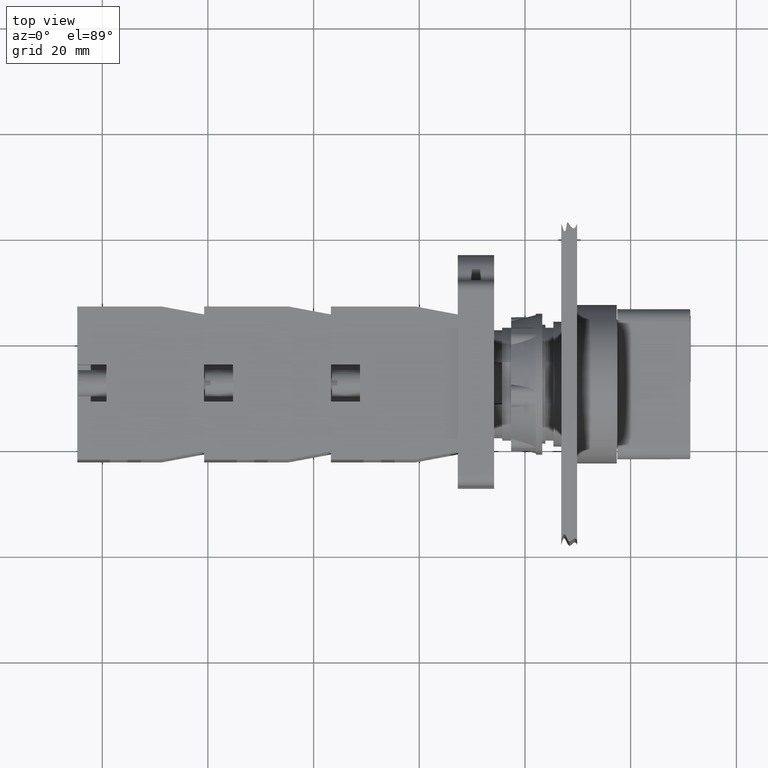
[diagram: clean part render]
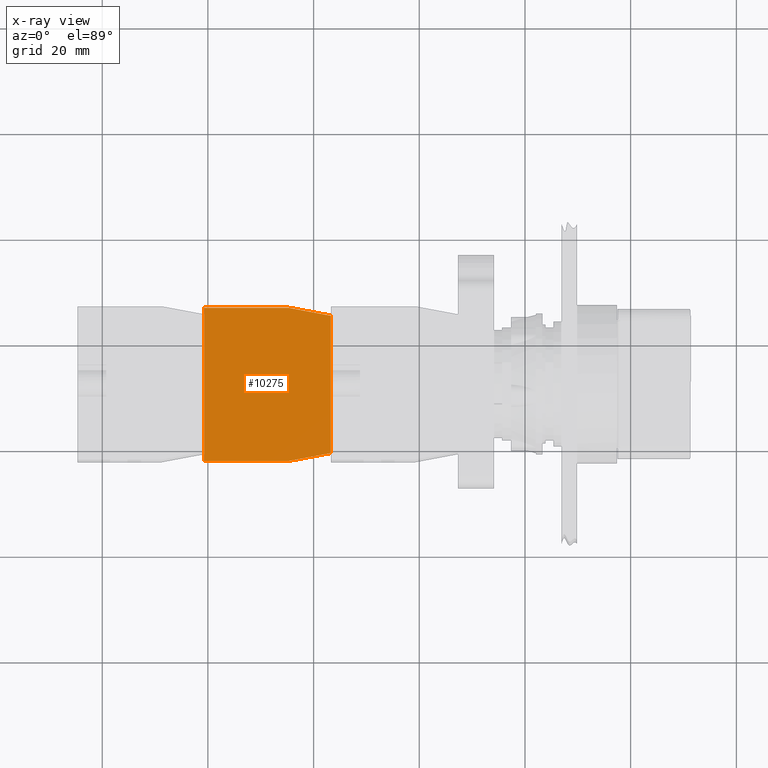
[diagram: x-ray — body ghosted, one internal face saturated and labeled with its STEP entity id]
A machine part, top view, then the same camera in x-ray: the body is ghosted and one INTERNAL B-rep face — a face not visible from any outside direction — is saturated and labeled: STEP entity #10275.
In plain terms, the highlighted planar face has unit normal (-0, 0, -1).
Its self-contained STEP definition (entity closure, byte-faithful):
#8580=CARTESIAN_POINT('',(-44.936741828918471,23.797073323279623,0.0));
#8581=VERTEX_POINT('',#8580);
#8588=CARTESIAN_POINT('',(-44.936741828918457,7.797073323279626,0.0));
#8589=VERTEX_POINT('',#8588);
#8590=CARTESIAN_POINT('',(-44.936741828918457,7.797073323279626,0.0));
#8591=DIRECTION('',(0.0,1.0,0.0));
#8592=VECTOR('',#8591,15.999999999999996);
#8593=LINE('',#8590,#8592);
#8594=EDGE_CURVE('',#8589,#8581,#8593,.T.);
#8771=CARTESIAN_POINT('',(-43.436741828918457,-0.202926676720380,0.0));
#8772=VERTEX_POINT('',#8771);
#8779=CARTESIAN_POINT('',(-17.436741828918457,-0.202926676720377,0.0));
#8780=VERTEX_POINT('',#8779);
#8781=CARTESIAN_POINT('',(-17.436741828918457,-0.202926676720377,0.0));
#8782=DIRECTION('',(-1.0,0.0,0.0));
#8783=VECTOR('',#8782,26.0);
#8784=LINE('',#8781,#8783);
#8785=EDGE_CURVE('',#8780,#8772,#8784,.T.);
#10129=CARTESIAN_POINT('',(-15.936741828918466,23.797073323279626,0.0));
#10130=VERTEX_POINT('',#10129);
#10137=CARTESIAN_POINT('',(-44.936741828918471,23.797073323279623,0.0));
#10138=DIRECTION('',(1.0,0.0,0.0));
#10139=VECTOR('',#10138,29.000000000000007);
#10140=LINE('',#10137,#10139);
#10141=EDGE_CURVE('',#8581,#10130,#10140,.T.);
#10177=CARTESIAN_POINT('',(-15.936741828918466,7.797073323279626,0.0));
#10178=VERTEX_POINT('',#10177);
#10185=CARTESIAN_POINT('',(-15.936741828918466,23.797073323279626,0.0));
#10186=DIRECTION('',(0.0,-1.0,0.0));
#10187=VECTOR('',#10186,16.0);
#10188=LINE('',#10185,#10187);
#10189=EDGE_CURVE('',#10130,#10178,#10188,.T.);
#10217=CARTESIAN_POINT('',(-15.936741828918466,7.797073323279626,0.0));
#10218=DIRECTION('',(-0.184288535050184,-0.982872186934322,0.0));
#10219=VECTOR('',#10218,8.139410298049855);
#10220=LINE('',#10217,#10219);
#10221=EDGE_CURVE('',#10178,#8780,#10220,.T.);
#10234=CARTESIAN_POINT('',(-43.436741828918457,-0.202926676720380,0.0));
#10235=DIRECTION('',(-0.184288535050185,0.982872186934322,0.0));
#10236=VECTOR('',#10235,8.139410298049860);
#10237=LINE('',#10234,#10236);
#10238=EDGE_CURVE('',#8772,#8589,#10237,.T.);
#10262=CARTESIAN_POINT('',(-30.436741828918464,12.124046801833057,0.0));
#10263=DIRECTION('',(0.0,0.0,1.0));
#10264=DIRECTION('',(1.0,0.0,0.0));
#10265=AXIS2_PLACEMENT_3D('',#10262,#10263,#10264);
#10266=PLANE('',#10265);
#10267=ORIENTED_EDGE('',*,*,#10141,.T.);
#10268=ORIENTED_EDGE('',*,*,#10189,.T.);
#10269=ORIENTED_EDGE('',*,*,#10221,.T.);
#10270=ORIENTED_EDGE('',*,*,#8785,.T.);
#10271=ORIENTED_EDGE('',*,*,#10238,.T.);
#10272=ORIENTED_EDGE('',*,*,#8594,.T.);
#10273=EDGE_LOOP('',(#10267,#10268,#10269,#10270,#10271,#10272));
#10274=FACE_OUTER_BOUND('',#10273,.T.);
#10275=ADVANCED_FACE('',(#10274),#10266,.F.);